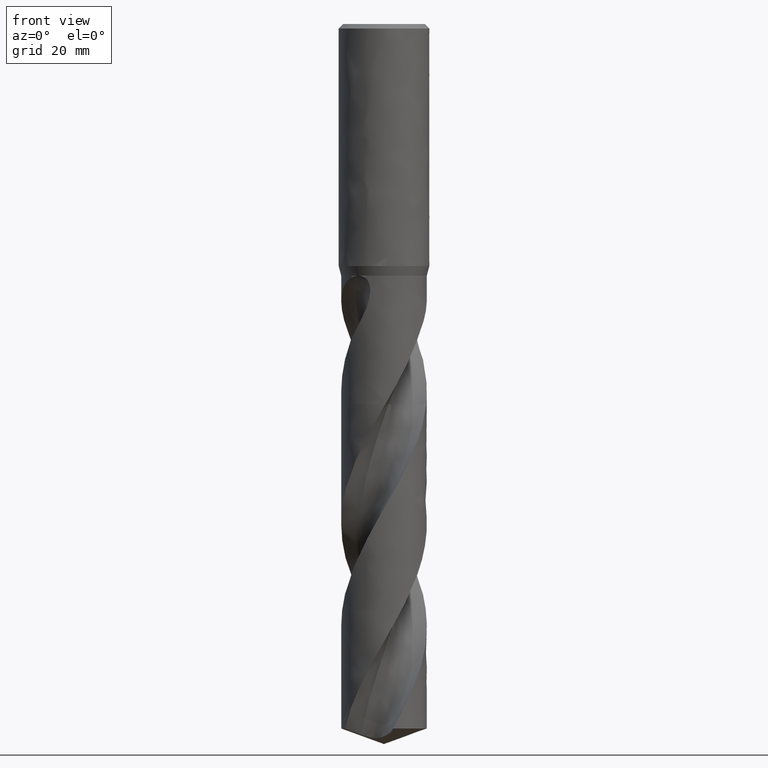
[diagram: clean part render]
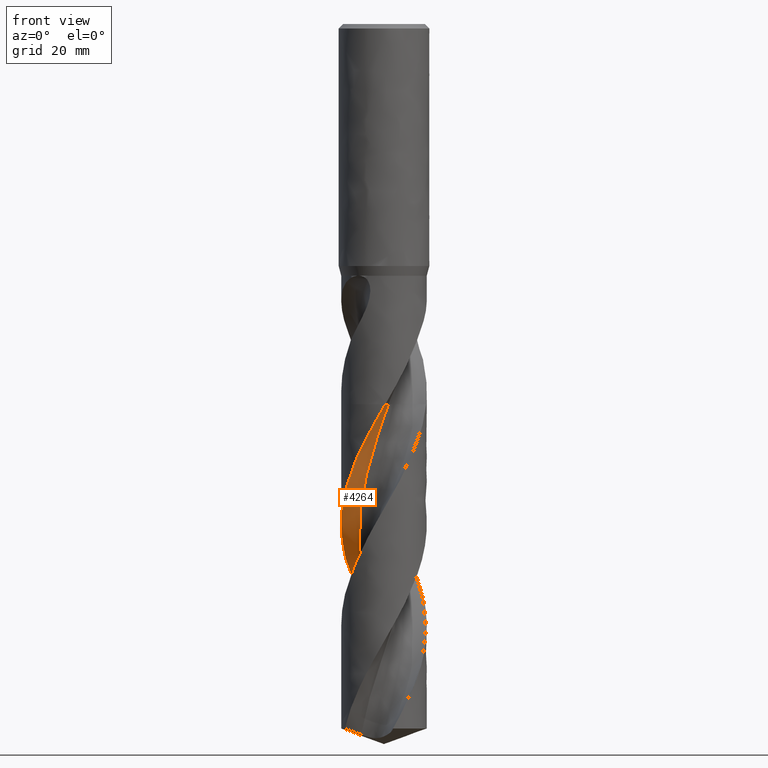
[diagram: same view with one face highlighted and labeled with its STEP entity id]
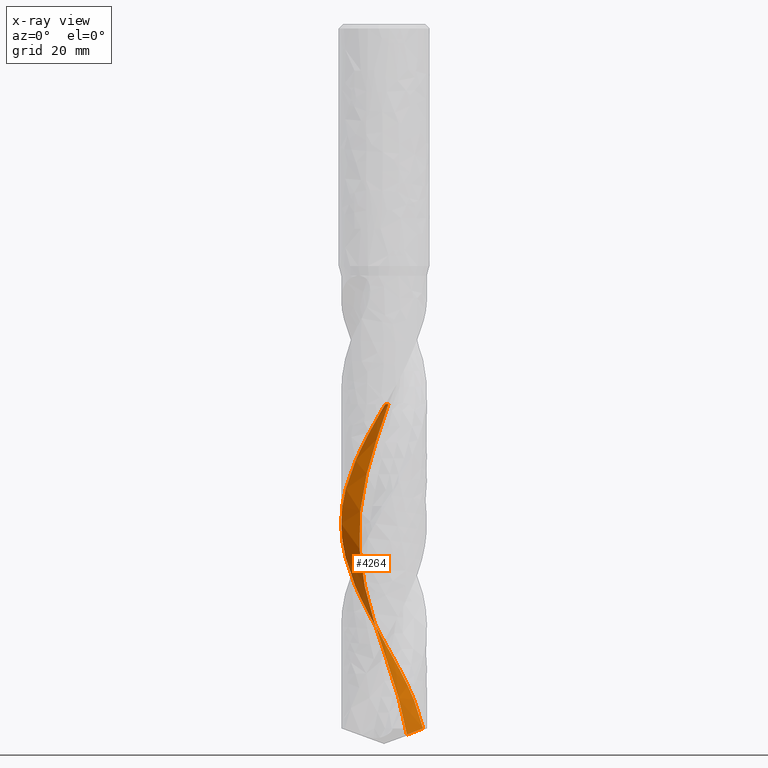
[diagram: x-ray of the same camera — body ghosted, the highlighted face saturated]
A machine part, front view. The second image highlights one B-rep face of the part: STEP entity #4264.
The next image is the same camera in x-ray: the body ghosted, the highlighted face saturated — about 0% of this face is hidden behind the body in this view.
In plain terms, the highlighted face is a freeform B-spline surface patch.
Its self-contained STEP definition (entity closure, byte-faithful):
#2070 = VERTEX_POINT('', #2071);
#2071 = CARTESIAN_POINT('', (0.273123105242103, -8.495610853222, -75.5));
#2078 = EDGE_CURVE('', #2070, #2079, #2081, .T.);
#2079 = VERTEX_POINT('', #2080);
#2080 = CARTESIAN_POINT('', (0.872850552321032, -5.01350328899463, -75.5));
#2081 = LINE('', #2082, #2083);
#2082 = CARTESIAN_POINT('', (0.273123105242104, -8.495610853222, -75.5));
#2083 = VECTOR('', #2084, 3.53337602012994);
#2084 = DIRECTION('', (0.599727447078932, 3.48210756422737, 0.));
#2261 = VERTEX_POINT('', #2262);
#2262 = CARTESIAN_POINT('', (-8.5, 6.59853093141266E-15, -99.2621880203633));
#2268 = EDGE_CURVE('', #2070, #2261, #2269, .T.);
#2269 = B_SPLINE_CURVE_WITH_KNOTS('', 3, (#2270, #2271, #2272, #2273, #2274, #2275, #2276, #2277, #2278, #2279, #2280, #2281, #2282, #2283, #2284, #2285, #2286, #2287, #2288, #2289, #2290, #2291, #2292, #2293, #2294, #2295, #2296, #2297, #2298, #2299, #2300, #2301, #2302, #2303, #2304, #2305, #2306, #2307, #2308, #2309, #2310, #2311, #2312, #2313, #2314, #2315, #2316, #2317, #2318, #2319, #2320, #2321, #2322, #2323, #2324, #2325, #2326, #2327, #2328, #2329, #2330, #2331, #2332, #2333, #2334, #2335, #2336, #2337, #2338, #2339, #2340, #2341, #2342, #2343, #2344, #2345, #2346, #2347, #2348, #2349, #2350, #2351, #2352, #2353, #2354, #2355, #2356, #2357, #2358, #2359, #2360), .UNSPECIFIED., .F., .U., (4, 3, 3, 3, 3, 3, 3, 3, 3, 3, 3, 3, 3, 3, 3, 3, 3, 3, 3, 3, 3, 3, 3, 3, 3, 3, 3, 3, 3, 3, 4), (24.2441588219189, 24.5876649683072, 24.7846591365975, 24.8722454084868, 25.8712546038705, 26.8701420773767, 27.8689053967638, 28.8675489563647, 29.8660757818898, 30.8644883369163, 31.8627874758352, 32.8609759364819, 33.8590545798768, 34.8570251056435, 35.8548883682707, 36.8526452230695, 37.8502966440866, 38.8478426378316, 39.8452841581775, 40.8426206525252, 41.8398527985312, 42.8369797336069, 43.8340016165823, 44.8309174913149, 45.8277267862753, 46.8244285826789, 47.8210214701035, 48.817504493038, 49.8138755483867, 50.8101333954164, 51.6344700378206), .UNSPECIFIED.);
#2270 = CARTESIAN_POINT('', (0.273123105242103, -8.495610853222, -75.5));
#2271 = CARTESIAN_POINT('', (0.216114492250964, -8.49744360776722, -75.5992843302546));
#2272 = CARTESIAN_POINT('', (0.159084949910594, -8.49870253770014, -75.6985783601385));
#2273 = CARTESIAN_POINT('', (0.102055337595978, -8.49938731368727, -75.7978651849422));
#2274 = CARTESIAN_POINT('', (0.0693499517856736, -8.49978001954558, -75.8548042693808));
#2275 = CARTESIAN_POINT('', (0.036642826903847, -8.49998394218386, -75.9117439698591));
#2276 = CARTESIAN_POINT('', (0.00393634562337559, -8.49999908854013, -75.968683777274));
#2277 = CARTESIAN_POINT('', (-0.010605398362423, -8.500005822815, -75.9939999858544));
#2278 = CARTESIAN_POINT('', (-0.0251470538194013, -8.49997524004555, -76.0193162827143));
#2279 = CARTESIAN_POINT('', (-0.0396884118431119, -8.49990734243411, -76.0446326228354));
#2280 = CARTESIAN_POINT('', (-0.205547171049271, -8.49913290213989, -76.3333908497682));
#2281 = CARTESIAN_POINT('', (-0.3713860911951, -8.49350200173257, -76.6221882143764));
#2282 = CARTESIAN_POINT('', (-0.536897869018356, -8.48302662251179, -76.9109565630861));
#2283 = CARTESIAN_POINT('', (-0.702389480456334, -8.47255251963845, -77.1996897275095));
#2284 = CARTESIAN_POINT('', (-0.867587900404886, -8.45723267934583, -77.4884558944368));
#2285 = CARTESIAN_POINT('', (-1.03217206679846, -8.43709789113064, -77.7771956786741));
#2286 = CARTESIAN_POINT('', (-1.19673577663136, -8.41696560551656, -78.0658995747512));
#2287 = CARTESIAN_POINT('', (-1.36071990543449, -8.39201537279887, -78.3546385719808));
#2288 = CARTESIAN_POINT('', (-1.52380729729261, -8.36229701222803, -78.6433525910205));
#2289 = CARTESIAN_POINT('', (-1.68687513365567, -8.33258221512857, -78.9320319909181));
#2290 = CARTESIAN_POINT('', (-1.84908135010558, -8.29809412744449, -79.2207474390982));
#2291 = CARTESIAN_POINT('', (-2.01011503353498, -8.2589005050283, -79.5094374062102));
#2292 = CARTESIAN_POINT('', (-2.17112989331299, -8.21971146405786, -79.7980936275915));
#2293 = CARTESIAN_POINT('', (-2.33100694271962, -8.17580961239562, -80.0867853410572));
#2294 = CARTESIAN_POINT('', (-2.48944022423327, -8.12728044120353, -80.3754508828108));
#2295 = CARTESIAN_POINT('', (-2.64785537478679, -8.07875682364548, -80.6640833899433));
#2296 = CARTESIAN_POINT('', (-2.8048600740517, -8.02559681678221, -80.9527511789534));
#2297 = CARTESIAN_POINT('', (-2.96015285020663, -7.96790405962657, -81.2413933882806));
#2298 = CARTESIAN_POINT('', (-3.11542798565569, -7.9102178561625, -81.5300028088816));
#2299 = CARTESIAN_POINT('', (-3.2690247179435, -7.84798763364139, -81.8186475645104));
#2300 = CARTESIAN_POINT('', (-3.42064869110348, -7.78133423855138, -82.1072666198492));
#2301 = CARTESIAN_POINT('', (-3.57225585419248, -7.71468823311275, -82.3958536769049));
#2302 = CARTESIAN_POINT('', (-3.72192244319012, -7.6436060887603, -82.6844762687654));
#2303 = CARTESIAN_POINT('', (-3.86936216696276, -7.56822544728136, -82.9730732164016));
#2304 = CARTESIAN_POINT('', (-4.01678566992551, -7.49285309892061, -83.2616384135971));
#2305 = CARTESIAN_POINT('', (-4.1620143107232, -7.41316707361552, -83.5502387271682));
#2306 = CARTESIAN_POINT('', (-4.30476983133559, -7.32932170799065, -83.8388134473944));
#2307 = CARTESIAN_POINT('', (-4.44750988784762, -7.24548542497878, -84.1273569075445));
#2308 = CARTESIAN_POINT('', (-4.58780726923251, -7.15747316199552, -84.4159358913781));
#2309 = CARTESIAN_POINT('', (-4.72539429393629, -7.0654546043998, -84.7044891276601));
#2310 = CARTESIAN_POINT('', (-4.86296653061192, -6.97344593707551, -84.9930113498739));
#2311 = CARTESIAN_POINT('', (-4.99785810846836, -6.87741233866402, -85.2815686720025));
#2312 = CARTESIAN_POINT('', (-5.12981090613304, -6.7775393814657, -85.5701005411033));
#2313 = CARTESIAN_POINT('', (-5.2617496329213, -6.67767707428817, -85.8586016424118));
#2314 = CARTESIAN_POINT('', (-5.39077794030814, -6.57395527296669, -86.1471382400447));
#2315 = CARTESIAN_POINT('', (-5.51665025569285, -6.46657327773868, -86.4356490037921));
#2316 = CARTESIAN_POINT('', (-5.64250927004721, -6.35920262965379, -86.7241292803714));
#2317 = CARTESIAN_POINT('', (-5.76523928345365, -6.24815007234425, -87.0126446927155));
#2318 = CARTESIAN_POINT('', (-5.88460594175765, -6.13362966849406, -87.3011347194531));
#2319 = CARTESIAN_POINT('', (-6.00395998593519, -6.01912136664016, -87.5895942598746));
#2320 = CARTESIAN_POINT('', (-6.11997659779415, -5.90112179715424, -87.878089158008));
#2321 = CARTESIAN_POINT('', (-6.23243526034521, -5.77985732744379, -88.1665582605446));
#2322 = CARTESIAN_POINT('', (-6.34488214505465, -5.65860555781074, -88.4549971515943));
#2323 = CARTESIAN_POINT('', (-6.45379519076413, -5.53406435227239, -88.7434712387315));
#2324 = CARTESIAN_POINT('', (-6.55896698920659, -5.40647316043447, -89.0319199654886));
#2325 = CARTESIAN_POINT('', (-6.66412771354306, -5.2788954033614, -89.3203383199232));
#2326 = CARTESIAN_POINT('', (-6.7655703167779, -5.14824122143428, -89.6087918317009));
#2327 = CARTESIAN_POINT('', (-6.86310212096473, -5.01476113859965, -89.8972196803495));
#2328 = CARTESIAN_POINT('', (-6.96062372068988, -4.88129502138785, -90.1856173516528));
#2329 = CARTESIAN_POINT('', (-7.0542555727208, -4.74497589985589, -90.4740502812532));
#2330 = CARTESIAN_POINT('', (-7.14381996984732, -4.60606515785551, -90.7624578196325));
#2331 = CARTESIAN_POINT('', (-7.233374917666, -4.46716907134779, -91.0508349301666));
#2332 = CARTESIAN_POINT('', (-7.3188823427876, -4.32565232035809, -91.3392469931939));
#2333 = CARTESIAN_POINT('', (-7.40017996951928, -4.18178627128713, -91.6276335830667));
#2334 = CARTESIAN_POINT('', (-7.48146903115645, -4.03793537919378, -91.9159897900305));
#2335 = CARTESIAN_POINT('', (-7.55856608508484, -3.89170580365146, -92.2043813102326));
#2336 = CARTESIAN_POINT('', (-7.63132543118528, -3.74337710675063, -92.4927473415594));
#2337 = CARTESIAN_POINT('', (-7.7040770411562, -3.59506418088228, -92.7810827123994));
#2338 = CARTESIAN_POINT('', (-7.77250728493825, -3.44462110075521, -93.0694529089975));
#2339 = CARTESIAN_POINT('', (-7.83648658090541, -3.29233626279111, -93.3577978146648));
#2340 = CARTESIAN_POINT('', (-7.90045903687839, -3.14006770552207, -93.6461118935238));
#2341 = CARTESIAN_POINT('', (-7.95999485272256, -2.98592607759788, -93.9344613083441));
#2342 = CARTESIAN_POINT('', (-8.01498213288137, -2.83020518860249, -94.2227850855037));
#2343 = CARTESIAN_POINT('', (-8.06996348306612, -2.67450109296055, -94.511077769063));
#2344 = CARTESIAN_POINT('', (-8.12040875219768, -2.51718549943128, -94.7994053067354));
#2345 = CARTESIAN_POINT('', (-8.16622293362717, -2.35855951765091, -95.0877076555739));
#2346 = CARTESIAN_POINT('', (-8.21203210896983, -2.19995086883191, -95.3759785017957));
#2347 = CARTESIAN_POINT('', (-8.25322082367302, -2.03999894659519, -95.6642845930491));
#2348 = CARTESIAN_POINT('', (-8.28971220698595, -1.8790081227467, -95.9525650092895));
#2349 = CARTESIAN_POINT('', (-8.32619956748548, -1.7180350465412, -96.2408136454707));
#2350 = CARTESIAN_POINT('', (-8.35799815459284, -1.55598999525265, -96.5290972076766));
#2351 = CARTESIAN_POINT('', (-8.38504875007769, -1.39318249300677, -96.8173556290558));
#2352 = CARTESIAN_POINT('', (-8.41209630608289, -1.23039328426169, -97.1055816609222));
#2353 = CARTESIAN_POINT('', (-8.43440265482111, -1.06680752386528, -97.3938427478288));
#2354 = CARTESIAN_POINT('', (-8.45192682337311, -0.902736380316102, -97.6820782515167));
#2355 = CARTESIAN_POINT('', (-8.46944900081782, -0.738683878635606, -97.9702810057015));
#2356 = CARTESIAN_POINT('', (-8.48219367807006, -0.574112336936368, -98.258518763255));
#2357 = CARTESIAN_POINT('', (-8.49013807710422, -0.409335353597979, -98.5467313754282));
#2358 = CARTESIAN_POINT('', (-8.49671153521575, -0.272993436095747, -98.7852080084863));
#2359 = CARTESIAN_POINT('', (-8.5, -0.136489072500538, -99.0237049676689));
#2360 = CARTESIAN_POINT('', (-8.5, 5.55357687757113E-15, -99.2621880203633));
#2606 = VERTEX_POINT('', #2607);
#2607 = CARTESIAN_POINT('', (7.78303334169317, 3.41678094148462, -139.906253008737));
#2614 = EDGE_CURVE('', #2606, #2261, #2615, .T.);
#2615 = B_SPLINE_CURVE_WITH_KNOTS('', 3, (#2616, #2617, #2618, #2619, #2620, #2621, #2622, #2623, #2624, #2625, #2626, #2627, #2628, #2629, #2630, #2631, #2632, #2633, #2634, #2635, #2636, #2637, #2638, #2639, #2640, #2641, #2642, #2643, #2644, #2645, #2646, #2647, #2648, #2649, #2650, #2651, #2652, #2653, #2654, #2655, #2656, #2657, #2658, #2659, #2660, #2661, #2662, #2663, #2664, #2665, #2666, #2667, #2668, #2669, #2670, #2671, #2672, #2673, #2674, #2675, #2676, #2677, #2678, #2679, #2680, #2681, #2682, #2683, #2684, #2685, #2686, #2687, #2688, #2689, #2690, #2691, #2692, #2693, #2694, #2695, #2696, #2697, #2698, #2699, #2700, #2701, #2702, #2703, #2704, #2705, #2706, #2707, #2708, #2709, #2710, #2711, #2712, #2713, #2714, #2715, #2716, #2717, #2718, #2719, #2720, #2721, #2722, #2723, #2724, #2725, #2726, #2727, #2728, #2729, #2730, #2731, #2732, #2733, #2734, #2735, #2736, #2737, #2738, #2739, #2740, #2741, #2742, #2743, #2744, #2745, #2746, #2747, #2748, #2749, #2750, #2751, #2752, #2753, #2754), .UNSPECIFIED., .F., .U., (4, 3, 3, 3, 3, 3, 3, 3, 3, 3, 3, 3, 3, 3, 3, 3, 3, 3, 3, 3, 3, 3, 3, 3, 3, 3, 3, 3, 3, 3, 3, 3, 3, 3, 3, 3, 3, 3, 3, 3, 3, 3, 3, 3, 3, 3, 4), (0., 1.49764488866325, 2.99493055618322, 3.99279279966598, 4.99055169185537, 5.98820695926208, 6.98575979598458, 7.98320958355846, 8.98055704541274, 10.4761024013327, 11.9713008947787, 12.9682341699176, 13.9650624525783, 14.9617840817369, 15.9583984792186, 16.954903451076, 17.9512980070555, 18.9475796306885, 19.6120112228616, 19.8090068483731, 19.9403619786778, 21.4398449390983, 22.9389148706815, 23.9375478948172, 24.9360669118708, 25.9344733728537, 26.932769603456, 27.9309566160253, 28.9290361715122, 29.9270090808587, 30.9248764136484, 31.9226389360135, 32.9202969770207, 33.9178512470021, 34.9153014923473, 35.9126481993724, 36.9098907407616, 37.9070291843337, 38.9040626992015, 39.9009907749788, 40.8978124781968, 41.8945266249253, 42.8911321695102, 43.8876272748787, 44.8840106261979, 45.8802798740275, 46.7911153797545), .UNSPECIFIED.);
#2616 = CARTESIAN_POINT('', (7.78303334169317, 3.41678094148463, -139.906253008737));
#2617 = CARTESIAN_POINT('', (7.68383492364754, 3.64274350926835, -139.472298897121));
#2618 = CARTESIAN_POINT('', (7.57475679724769, 3.86445051030869, -139.038254322803));
#2619 = CARTESIAN_POINT('', (7.45625711607402, 4.08095942383597, -138.604321960451));
#2620 = CARTESIAN_POINT('', (7.33778585792058, 4.29741640610769, -138.170493679969));
#2621 = CARTESIAN_POINT('', (7.20984423908365, 4.50877523326975, -137.736574912808));
#2622 = CARTESIAN_POINT('', (7.07297032928552, 4.71413732522153, -137.302768521506));
#2623 = CARTESIAN_POINT('', (6.98175105852896, 4.85100037163053, -137.013659349988));
#2624 = CARTESIAN_POINT('', (6.88654355245077, 4.98523577621884, -136.724525217343));
#2625 = CARTESIAN_POINT('', (6.78752691696637, 5.1165885462344, -136.435425377164));
#2626 = CARTESIAN_POINT('', (6.68852053690291, 5.24792771168806, -136.146355479837));
#2627 = CARTESIAN_POINT('', (6.58568488300068, 5.37641262254916, -135.857260860407));
#2628 = CARTESIAN_POINT('', (6.47921317964737, 5.50179939407863, -135.56820104112));
#2629 = CARTESIAN_POINT('', (6.3727525341831, 5.62717314324663, -135.279171242874));
#2630 = CARTESIAN_POINT('', (6.26263526569623, 5.74947453075587, -134.990116186305));
#2631 = CARTESIAN_POINT('', (6.14906811050915, 5.86847180893966, -134.701095738352));
#2632 = CARTESIAN_POINT('', (6.03551261542331, 5.98745686950376, -134.41210496454));
#2633 = CARTESIAN_POINT('', (5.91848412691562, 6.10316341795634, -134.123089587826));
#2634 = CARTESIAN_POINT('', (5.79820326642092, 6.21537117807664, -133.834108800199));
#2635 = CARTESIAN_POINT('', (5.67793483117311, 6.32756734691704, -133.545157864849));
#2636 = CARTESIAN_POINT('', (5.55439055980109, 6.43628801834909, -133.256181488328));
#2637 = CARTESIAN_POINT('', (5.42780202341649, 6.54132747954082, -132.967240016906));
#2638 = CARTESIAN_POINT('', (5.30122647341301, 6.64635616501373, -132.678328187221));
#2639 = CARTESIAN_POINT('', (5.17158105260763, 6.74772609629115, -132.389391792671));
#2640 = CARTESIAN_POINT('', (5.03911082769909, 6.84524375505839, -132.100489757884));
#2641 = CARTESIAN_POINT('', (4.84046869219768, 6.99147371730082, -131.667274541555));
#2642 = CARTESIAN_POINT('', (4.6353949072298, 7.12909355827609, -131.233969157928));
#2643 = CARTESIAN_POINT('', (4.42475615699168, 7.25751561838928, -130.800775881333));
#2644 = CARTESIAN_POINT('', (4.21416626028896, 7.38590789351915, -130.36768307544));
#2645 = CARTESIAN_POINT('', (3.99791912185185, 7.50516449715005, -129.934499816654));
#2646 = CARTESIAN_POINT('', (3.77692862248946, 7.61477578006208, -129.501428661678));
#2647 = CARTESIAN_POINT('', (3.62958177638866, 7.6878598125465, -129.212675665476));
#2648 = CARTESIAN_POINT('', (3.48008976908318, 7.75667667124854, -128.923897828599));
#2649 = CARTESIAN_POINT('', (3.32873548544074, 7.8210945568998, -128.635154207878));
#2650 = CARTESIAN_POINT('', (3.17739714174305, 7.88550565835233, -128.346440996323));
#2651 = CARTESIAN_POINT('', (3.02416491494493, 7.94553235627809, -128.057702914086));
#2652 = CARTESIAN_POINT('', (2.86932772015067, 8.00105983194571, -127.768999700829));
#2653 = CARTESIAN_POINT('', (2.71450709182966, 8.05658136657028, -127.480327376754));
#2654 = CARTESIAN_POINT('', (2.55805058448758, 8.10761584336222, -127.191629925439));
#2655 = CARTESIAN_POINT('', (2.40025358223125, 8.1540654118658, -126.90296693489));
#2656 = CARTESIAN_POINT('', (2.24247355646732, 8.20050998312143, -126.614334999969));
#2657 = CARTESIAN_POINT('', (2.0833200809807, 8.24238041079563, -126.325678347831));
#2658 = CARTESIAN_POINT('', (1.92309399695492, 8.27959597316657, -126.037056393537));
#2659 = CARTESIAN_POINT('', (1.76288550532931, 8.31680744936721, -125.74846612917));
#2660 = CARTESIAN_POINT('', (1.60157238188155, 8.34937259796571, -125.459850507587));
#2661 = CARTESIAN_POINT('', (1.43945848256584, 8.37722861553685, -125.171269632664));
#2662 = CARTESIAN_POINT('', (1.27736254597887, 8.40508154657383, -124.882720733408));
#2663 = CARTESIAN_POINT('', (1.11443220623389, 8.42823216482109, -124.594147186325));
#2664 = CARTESIAN_POINT('', (0.950976100458751, 8.4466350966735, -124.305608143436));
#2665 = CARTESIAN_POINT('', (0.787538520960657, 8.46503594271936, -124.017101803848));
#2666 = CARTESIAN_POINT('', (0.623542164579376, 8.47869394997542, -123.728570026872));
#2667 = CARTESIAN_POINT('', (0.459295607180904, 8.48758196103134, -123.440073210335));
#2668 = CARTESIAN_POINT('', (0.349757702383197, 8.49350947710416, -123.2476713888));
#2669 = CARTESIAN_POINT('', (0.240096010166174, 8.49731659337362, -123.055262996776));
#2670 = CARTESIAN_POINT('', (0.13040303208192, 8.49899964991316, -122.86286557776));
#2671 = CARTESIAN_POINT('', (0.097880441214049, 8.49949865504729, -122.805822158464));
#2672 = CARTESIAN_POINT('', (0.0653545295756842, 8.49981098583043, -122.748778693923));
#2673 = CARTESIAN_POINT('', (0.0328277160425935, 8.49993660806123, -122.691735638007));
#2674 = CARTESIAN_POINT('', (0.0111390931661173, 8.50002037197454, -122.653699777954));
#2675 = CARTESIAN_POINT('', (-0.0105500280806034, 8.5000211242177, -122.615663928679));
#2676 = CARTESIAN_POINT('', (-0.0322389301338692, 8.49993886162624, -122.577628224542));
#2677 = CARTESIAN_POINT('', (-0.2798283389652, 8.49899979397138, -122.143432086877));
#2678 = CARTESIAN_POINT('', (-0.527453143966306, 8.48723239639503, -121.709144881521));
#2679 = CARTESIAN_POINT('', (-0.774054129441803, 8.46468193169097, -121.274970822322));
#2680 = CARTESIAN_POINT('', (-1.0205871892916, 8.4421376784561, -120.840916355284));
#2681 = CARTESIAN_POINT('', (-1.2662097023458, 8.40880602173532, -120.406770353337));
#2682 = CARTESIAN_POINT('', (-1.50987203867461, 8.36482435122396, -119.972737691177));
#2683 = CARTESIAN_POINT('', (-1.67219218843507, 8.33552515196451, -119.683598845246));
#2684 = CARTESIAN_POINT('', (-1.83368436364188, 8.30149464647715, -119.394434763267));
#2685 = CARTESIAN_POINT('', (-1.99404066935594, 8.26279624636567, -119.105305319301));
#2686 = CARTESIAN_POINT('', (-2.15437866829058, 8.22410226418507, -118.81620888326));
#2687 = CARTESIAN_POINT('', (-2.31361512200037, 8.18073324004036, -118.527087381327));
#2688 = CARTESIAN_POINT('', (-2.47144675137831, 8.13277018949274, -118.238000940897));
#2689 = CARTESIAN_POINT('', (-2.62926058949965, 8.08481254548462, -117.94894708716));
#2690 = CARTESIAN_POINT('', (-2.78570204788974, 8.03225215511987, -117.659867750478));
#2691 = CARTESIAN_POINT('', (-2.94047351516401, 7.97518749037407, -117.370823306773));
#2692 = CARTESIAN_POINT('', (-3.09522789469056, 7.91812912592776, -117.081810775401));
#2693 = CARTESIAN_POINT('', (-3.24834528917563, 7.85655542819011, -116.792773279208));
#2694 = CARTESIAN_POINT('', (-3.39953344497941, 7.79058228609817, -116.503770676637));
#2695 = CARTESIAN_POINT('', (-3.55070506012873, 7.72461636176043, -116.214799692231));
#2696 = CARTESIAN_POINT('', (-3.69997869347241, 7.65423853288943, -115.925803074453));
#2697 = CARTESIAN_POINT('', (-3.84707079195352, 7.57958088034545, -115.636841589631));
#2698 = CARTESIAN_POINT('', (-3.9941470556386, 7.50493126486608, -115.347911212165));
#2699 = CARTESIAN_POINT('', (-4.13907294649132, 7.42598712531795, -115.05895589536));
#2700 = CARTESIAN_POINT('', (-4.28157133892606, 7.34289771613952, -114.770035294348));
#2701 = CARTESIAN_POINT('', (-4.42405450521629, 7.25981718517601, -114.48114556489));
#2702 = CARTESIAN_POINT('', (-4.56414008271814, 7.17257517966173, -114.192230220688));
#2703 = CARTESIAN_POINT('', (-4.70156192340903, 7.08133571300997, -113.903350140873));
#2704 = CARTESIAN_POINT('', (-4.83896922610531, 6.99010589867307, -113.614500621972));
#2705 = CARTESIAN_POINT('', (-4.97374178801934, 6.89486053525878, -113.325626121447));
#2706 = CARTESIAN_POINT('', (-5.10562152818837, 6.79578022090912, -113.036786172914));
#2707 = CARTESIAN_POINT('', (-5.2374874164443, 6.69671031340362, -112.747976562519));
#2708 = CARTESIAN_POINT('', (-5.36648885319446, 6.5937854474973, -112.459141557693));
#2709 = CARTESIAN_POINT('', (-5.49238016040138, 6.48719971741501, -112.170341780983));
#2710 = CARTESIAN_POINT('', (-5.61825828481738, 6.38062514852745, -111.881572246131));
#2711 = CARTESIAN_POINT('', (-5.74105282121156, 6.27036852148574, -111.59277755842));
#2712 = CARTESIAN_POINT('', (-5.8605286862891, 6.15663897895456, -111.30401746073));
#2713 = CARTESIAN_POINT('', (-5.97999212412951, 6.04292126595894, -111.015287398313));
#2714 = CARTESIAN_POINT('', (-6.09616296352582, 5.92570722256763, -110.726532151925));
#2715 = CARTESIAN_POINT('', (-6.20881931074493, 5.80521858042579, -110.437812019756));
#2716 = CARTESIAN_POINT('', (-6.32146391019664, 5.68474250280055, -110.14912199523));
#2717 = CARTESIAN_POINT('', (-6.43061781619613, 5.56096783148595, -109.860406591029));
#2718 = CARTESIAN_POINT('', (-6.53607230870669, 5.43412907238664, -109.571725970748));
#2719 = CARTESIAN_POINT('', (-6.64151585472539, 5.30730347953005, -109.283075316378));
#2720 = CARTESIAN_POINT('', (-6.74328308331491, 5.17738757054647, -108.99439960209));
#2721 = CARTESIAN_POINT('', (-6.84117906612153, 5.04462773505247, -108.70575886467));
#2722 = CARTESIAN_POINT('', (-6.93906482440219, 4.91188176536119, -108.417148273684));
#2723 = CARTESIAN_POINT('', (-7.0331001759942, 4.77626532805451, -108.12851212033));
#2724 = CARTESIAN_POINT('', (-7.12310544866666, 4.6380350114219, -107.839910980644));
#2725 = CARTESIAN_POINT('', (-7.21310132607967, 4.49981912405161, -107.551339966778));
#2726 = CARTESIAN_POINT('', (-7.29908684809979, 4.358960855551, -107.262743943527));
#2727 = CARTESIAN_POINT('', (-7.38089684864564, 4.21572789796175, -106.974182748653));
#2728 = CARTESIAN_POINT('', (-7.46269824033941, 4.07251001275163, -106.685651919022));
#2729 = CARTESIAN_POINT('', (-7.54034182981004, 3.92688851834888, -106.39709546095));
#2730 = CARTESIAN_POINT('', (-7.61367914138684, 3.7791387817876, -106.108574189549));
#2731 = CARTESIAN_POINT('', (-7.68700869733725, 3.63140467017533, -105.820083430081));
#2732 = CARTESIAN_POINT('', (-7.75604812362643, 3.48151198041251, -105.531567650998));
#2733 = CARTESIAN_POINT('', (-7.82066438343154, 3.32974602661006, -105.243086552755));
#2734 = CARTESIAN_POINT('', (-7.88527374866011, 3.17799626628566, -104.954636235542));
#2735 = CARTESIAN_POINT('', (-7.94547438032527, 3.02434204914946, -104.666160386383));
#2736 = CARTESIAN_POINT('', (-8.00115074048929, 2.86907421095511, -104.37771977434));
#2737 = CARTESIAN_POINT('', (-8.05682109320602, 2.71382312607138, -104.089310284874));
#2738 = CARTESIAN_POINT('', (-8.10797963941399, 2.55692661842123, -103.800875692454));
#2739 = CARTESIAN_POINT('', (-8.15452740825889, 2.39868354477087, -103.512475699389));
#2740 = CARTESIAN_POINT('', (-8.20107010525096, 2.24045771331282, -103.224107130435));
#2741 = CARTESIAN_POINT('', (-8.24301290267621, 2.08085213317688, -102.935713248778));
#2742 = CARTESIAN_POINT('', (-8.28027467420713, 1.92016960700978, -102.647354524077));
#2743 = CARTESIAN_POINT('', (-8.3175323165609, 1.75950488693694, -102.359027753956));
#2744 = CARTESIAN_POINT('', (-8.35011763167194, 1.59773034485755, -102.070675701133));
#2745 = CARTESIAN_POINT('', (-8.37796714460867, 1.43515383281995, -101.782358353544));
#2746 = CARTESIAN_POINT('', (-8.40581353430292, 1.27259555326885, -101.494073339912));
#2747 = CARTESIAN_POINT('', (-8.42893109990213, 1.1092009856033, -101.205763164341));
#2748 = CARTESIAN_POINT('', (-8.44727436929597, 0.945280767727511, -100.917488032924));
#2749 = CARTESIAN_POINT('', (-8.46561553806153, 0.781379321611434, -100.6292459141));
#2750 = CARTESIAN_POINT('', (-8.47918727637823, 0.616918673624112, -100.340978327292));
#2751 = CARTESIAN_POINT('', (-8.48796235450366, 0.452211309598566, -100.052745636894));
#2752 = CARTESIAN_POINT('', (-8.49598493749474, 0.301628206149395, -99.7892299568731));
#2753 = CARTESIAN_POINT('', (-8.5, 0.150811072785338, -99.5256954525631));
#2754 = CARTESIAN_POINT('', (-8.5, 5.55357687757113E-15, -99.2621880203633));
#3797 = EDGE_CURVE('', #3798, #2079, #3800, .T.);
#3798 = VERTEX_POINT('', #3799);
#3799 = CARTESIAN_POINT('', (4.53570684960779, 2.30879701014691, -141.147567413682));
#3800 = B_SPLINE_CURVE_WITH_KNOTS('', 3, (#3801, #3802, #3803, #3804, #3805, #3806, #3807, #3808, #3809, #3810, #3811, #3812, #3813, #3814, #3815, #3816, #3817, #3818, #3819, #3820, #3821, #3822, #3823, #3824, #3825, #3826, #3827, #3828, #3829, #3830, #3831, #3832, #3833, #3834, #3835, #3836, #3837, #3838, #3839, #3840, #3841, #3842, #3843, #3844, #3845), .UNSPECIFIED., .F., .U., (4, 1, 1, 1, 1, 1, 1, 1, 1, 1, 1, 1, 1, 1, 1, 1, 1, 1, 1, 1, 1, 1, 1, 1, 1, 1, 1, 1, 1, 1, 1, 1, 1, 1, 1, 1, 1, 1, 1, 1, 1, 1, 4), (1.90243258631817, 3.15491525423729, 4.73237288135593, 6.30983050847458, 7.88728813559322, 9.46474576271186, 11.0422033898305, 12.6196610169492, 14.1971186440678, 15.7745762711864, 17.3520338983051, 18.9294915254237, 20.5069491525424, 22.084406779661, 23.6618644067797, 25.2393220338983, 26.8167796610169, 28.3942372881356, 29.9716949152542, 31.5491525423729, 33.1266101694915, 34.7040677966102, 36.2815254237288, 37.8589830508475, 39.4364406779661, 41.0138983050847, 42.5913559322034, 44.168813559322, 45.7462711864407, 47.3237288135593, 48.901186440678, 50.4786440677966, 52.0561016949152, 53.6335593220339, 55.2110169491525, 56.7884745762712, 58.3659322033898, 59.9433898305085, 61.5208474576271, 63.0983050847458, 64.6757627118644, 66.2532203389831, 67.55), .UNSPECIFIED.);
#3801 = CARTESIAN_POINT('', (4.53570684960778, 2.30879701014692, -141.147567413682));
#3802 = CARTESIAN_POINT('', (4.46769455850518, 2.43448795774081, -140.730073191042));
#3803 = CARTESIAN_POINT('', (4.30237233456855, 2.71178721590451, -139.786759759363));
#3804 = CARTESIAN_POINT('', (4.00596020398452, 3.11678888446556, -138.317627118644));
#3805 = CARTESIAN_POINT('', (3.64480641942108, 3.514953969856, -136.740169491525));
#3806 = CARTESIAN_POINT('', (3.24488716198237, 3.87227467584015, -135.162711864407));
#3807 = CARTESIAN_POINT('', (2.81072271988332, 4.18506552300946, -133.585254237288));
#3808 = CARTESIAN_POINT('', (2.34717185167911, 4.45012879469237, -132.00779661017));
#3809 = CARTESIAN_POINT('', (1.85938322845106, 4.66478712323646, -130.430338983051));
#3810 = CARTESIAN_POINT('', (1.35274002243834, 4.82690804329075, -128.852881355932));
#3811 = CARTESIAN_POINT('', (0.832803573453643, 4.93492366122554, -127.275423728814));
#3812 = CARTESIAN_POINT('', (0.30525524990833, 4.98784438623364, -125.697966101695));
#3813 = CARTESIAN_POINT('', (-0.224162538920032, 4.98526686384074, -124.120508474576));
#3814 = CARTESIAN_POINT('', (-0.749705708322296, 4.92737600175594, -122.543050847458));
#3815 = CARTESIAN_POINT('', (-1.26568763918169, 4.81494111468747, -120.965593220339));
#3816 = CARTESIAN_POINT('', (-1.76653753302831, 4.6493062470862, -119.38813559322));
#3817 = CARTESIAN_POINT('', (-2.2468574204104, 4.43237479199793, -117.810677966102));
#3818 = CARTESIAN_POINT('', (-2.70147727947187, 4.16658857459936, -116.233220338983));
#3819 = CARTESIAN_POINT('', (-3.12550774066004, 3.8549016196097, -114.655762711864));
#3820 = CARTESIAN_POINT('', (-3.51438987782229, 3.50074886968906, -113.078305084746));
#3821 = CARTESIAN_POINT('', (-3.86394161427363, 3.10801016746339, -111.500847457627));
#3822 = CARTESIAN_POINT('', (-4.17040030476967, 2.68096985642617, -109.923389830508));
#3823 = CARTESIAN_POINT('', (-4.43046109034622, 2.22427239538146, -108.34593220339));
#3824 = CARTESIAN_POINT('', (-4.64131066240843, 1.74287441699916, -106.768474576271));
#3825 = CARTESIAN_POINT('', (-4.80065611493931, 1.24199369317963, -105.191016949153));
#3826 = CARTESIAN_POINT('', (-4.90674860891064, 0.727055498024628, -103.613559322034));
#3827 = CARTESIAN_POINT('', (-4.95840162055451, 0.203636883064418, -102.036101694915));
#3828 = CARTESIAN_POINT('', (-4.95500359471716, -0.322590601188567, -100.458644067797));
#3829 = CARTESIAN_POINT('', (-4.89652487567367, -0.845919188464454, -98.881186440678));
#3830 = CARTESIAN_POINT('', (-4.78351884013571, -1.36066362573158, -97.3037288135593));
#3831 = CARTESIAN_POINT('', (-4.61711721030527, -1.86121978367811, -95.7262711864407));
#3832 = CARTESIAN_POINT('', (-4.39901957835177, -2.34212258391505, -94.148813559322));
#3833 = CARTESIAN_POINT('', (-4.13147722698303, -2.79810268284054, -92.5713559322034));
#3834 = CARTESIAN_POINT('', (-3.81727138419375, -3.22414136065348, -90.9938983050847));
#3835 = CARTESIAN_POINT('', (-3.45968610046548, -3.61552308131949, -89.4164406779661));
#3836 = CARTESIAN_POINT('', (-3.06247599411053, -3.96788519677605, -87.8389830508475));
#3837 = CARTESIAN_POINT('', (-2.62982913407136, -4.27726433531227, -86.2615254237288));
#3838 = CARTESIAN_POINT('', (-2.16632547043543, -4.54013888181021, -84.6840677966102));
#3839 = CARTESIAN_POINT('', (-1.67689091522493, -4.75346758874833, -83.1066101694915));
#3840 = CARTESIAN_POINT('', (-1.16674853002574, -4.91472215906032, -81.5291525423729));
#3841 = CARTESIAN_POINT('', (-0.641363414935185, -5.02192002137347, -79.9516949152542));
#3842 = CARTESIAN_POINT('', (-0.106396213709954, -5.07363244073825, -78.3742372881356));
#3843 = CARTESIAN_POINT('', (0.400432664223965, -5.06933053580082, -76.8903389830508));
#3844 = CARTESIAN_POINT('', (0.726494927196873, -5.03520302541645, -75.9322598870056));
#3845 = CARTESIAN_POINT('', (0.872850552321032, -5.01350328899463, -75.5));
#4264 = ADVANCED_FACE('', (#4265), #4305, .T.);
#4265 = FACE_OUTER_BOUND('', #4266, .T.);
#4266 = EDGE_LOOP('', (#4267, #4268, #4269, #4270, #4304));
#4267 = ORIENTED_EDGE('', *, *, #2078, .F.);
#4268 = ORIENTED_EDGE('', *, *, #2268, .T.);
#4269 = ORIENTED_EDGE('', *, *, #2614, .F.);
#4270 = ORIENTED_EDGE('', *, *, #4271, .F.);
#4271 = EDGE_CURVE('', #3798, #2606, #4272, .T.);
#4272 = B_SPLINE_CURVE_WITH_KNOTS('', 3, (#4273, #4274, #4275, #4276, #4277, #4278, #4279, #4280, #4281, #4282, #4283, #4284, #4285, #4286, #4287, #4288, #4289, #4290, #4291, #4292, #4293, #4294, #4295, #4296, #4297, #4298, #4299, #4300, #4301, #4302, #4303), .UNSPECIFIED., .F., .U., (4, 3, 3, 3, 3, 3, 3, 3, 3, 3, 4), (0., 0.295776264781721, 0.591516409047684, 0.88722895626228, 1.18292062769067, 1.47859675553453, 1.92216099166672, 2.36570183720965, 2.80923149055827, 3.25275886854403, 3.65283511382563), .UNSPECIFIED.);
#4273 = CARTESIAN_POINT('', (4.53570684960779, 2.30879701014691, -141.147567413682));
#4274 = CARTESIAN_POINT('', (4.62594129921141, 2.33100842190221, -141.114631154633));
#4275 = CARTESIAN_POINT('', (4.71598791720835, 2.35385669549908, -141.081603036149));
#4276 = CARTESIAN_POINT('', (4.80583924117977, 2.37733816765309, -141.04850077167));
#4277 = CARTESIAN_POINT('', (4.89567959241082, 2.40081677222445, -141.015402549675));
#4278 = CARTESIAN_POINT('', (4.98532879253926, 2.42492949159316, -140.982228639461));
#4279 = CARTESIAN_POINT('', (5.07477861397122, 2.44967232000068, -140.948993902072));
#4280 = CARTESIAN_POINT('', (5.16422008837501, 2.47441283952616, -140.915762265989));
#4281 = CARTESIAN_POINT('', (5.25346626447364, 2.49978446965681, -140.882468272858));
#4282 = CARTESIAN_POINT('', (5.34250833172987, 2.52578289826129, -140.849124543979));
#4283 = CARTESIAN_POINT('', (5.43154411307373, 2.55177949151031, -140.815783168997));
#4284 = CARTESIAN_POINT('', (5.52037981026249, 2.57840396221638, -140.782390539179));
#4285 = CARTESIAN_POINT('', (5.60900617245811, 2.60565171900353, -140.748957498937));
#4286 = CARTESIAN_POINT('', (5.69762787584359, 2.63289804346149, -140.715526216165));
#4287 = CARTESIAN_POINT('', (5.78604421775119, 2.66076880405081, -140.682053013614));
#4288 = CARTESIAN_POINT('', (5.87424561948491, 2.68925915114143, -140.648547312158));
#4289 = CARTESIAN_POINT('', (6.00656265052526, 2.73199949388248, -140.598283089));
#4290 = CARTESIAN_POINT('', (6.13840697700414, 2.77613786502247, -140.547941740326));
#4291 = CARTESIAN_POINT('', (6.26974529480735, 2.82165687838094, -140.497550357827));
#4292 = CARTESIAN_POINT('', (6.40107668671256, 2.86717349137333, -140.447161632631));
#4293 = CARTESIAN_POINT('', (6.53191509583522, 2.91407510052132, -140.396717806486));
#4294 = CARTESIAN_POINT('', (6.66222652270225, 2.96234319685397, -140.346241642911));
#4295 = CARTESIAN_POINT('', (6.79253466132463, 3.01061007520203, -140.295766753038));
#4296 = CARTESIAN_POINT('', (6.92232861338968, 3.06024810398877, -140.245254513602));
#4297 = CARTESIAN_POINT('', (7.05157406097478, 3.11123773106211, -140.19472443094));
#4298 = CARTESIAN_POINT('', (7.18081884551448, 3.16222709655226, -140.144194607503));
#4299 = CARTESIAN_POINT('', (7.30952769542066, 3.21457300478065, -140.093641979953));
#4300 = CARTESIAN_POINT('', (7.43766625374884, 3.26825492741182, -140.043083559957));
#4301 = CARTESIAN_POINT('', (7.55325143706842, 3.31667778271178, -139.997478206503));
#4302 = CARTESIAN_POINT('', (7.66838216614551, 3.36619168988732, -139.951864316002));
#4303 = CARTESIAN_POINT('', (7.78303334169317, 3.41678094148462, -139.906253008737));
#4304 = ORIENTED_EDGE('', *, *, #3797, .T.);
#4305 = B_SPLINE_SURFACE_WITH_KNOTS('', 3, 1, ((#4306, #4307), (#4308, #4309), (#4310, #4311), (#4312, #4313), (#4314, #4315), (#4316, #4317), (#4318, #4319), (#4320, #4321), (#4322, #4323), (#4324, #4325), (#4326, #4327), (#4328, #4329), (#4330, #4331), (#4332, #4333), (#4334, #4335), (#4336, #4337), (#4338, #4339), (#4340, #4341), (#4342, #4343), (#4344, #4345), (#4346, #4347), (#4348, #4349), (#4350, #4351), (#4352, #4353), (#4354, #4355), (#4356, #4357), (#4358, #4359), (#4360, #4361), (#4362, #4363), (#4364, #4365), (#4366, #4367), (#4368, #4369), (#4370, #4371), (#4372, #4373), (#4374, #4375), (#4376, #4377), (#4378, #4379), (#4380, #4381), (#4382, #4383), (#4384, #4385), (#4386, #4387), (#4388, #4389), (#4390, #4391), (#4392, #4393), (#4394, #4395)), .UNSPECIFIED., .F., .F., .U., (4, 1, 1, 1, 1, 1, 1, 1, 1, 1, 1, 1, 1, 1, 1, 1, 1, 1, 1, 1, 1, 1, 1, 1, 1, 1, 1, 1, 1, 1, 1, 1, 1, 1, 1, 1, 1, 1, 1, 1, 1, 1, 4), (2, 2), (1.90243258631817, 3.15491525423729, 4.73237288135593, 6.30983050847458, 7.88728813559322, 9.46474576271186, 11.0422033898305, 12.6196610169492, 14.1971186440678, 15.7745762711864, 17.3520338983051, 18.9294915254237, 20.5069491525424, 22.084406779661, 23.6618644067797, 25.2393220338983, 26.8167796610169, 28.3942372881356, 29.9716949152542, 31.5491525423729, 33.1266101694915, 34.7040677966102, 36.2815254237288, 37.8589830508475, 39.4364406779661, 41.0138983050847, 42.5913559322034, 44.168813559322, 45.7462711864407, 47.3237288135593, 48.901186440678, 50.4786440677966, 52.0561016949152, 53.6335593220339, 55.2110169491525, 56.7884745762712, 58.3659322033898, 59.9433898305085, 61.5208474576271, 63.0983050847458, 64.6757627118644, 66.2532203389831, 67.55), (0., 0.192951410462165), .UNSPECIFIED.);
#4306 = CARTESIAN_POINT('', (4.53570684960779, 2.30879701014691, -141.147567413682));
#4307 = CARTESIAN_POINT('', (8.29169345311119, 2.79187407923683, -141.147567413682));
#4308 = CARTESIAN_POINT('', (4.46769455850518, 2.43448795774081, -140.730073191042));
#4309 = CARTESIAN_POINT('', (8.207468873003, 3.0226576259085, -140.730073191042));
#4310 = CARTESIAN_POINT('', (4.30237233456855, 2.71178721590451, -139.786759759363));
#4311 = CARTESIAN_POINT('', (7.99567631987419, 3.53563337639698, -139.786759759363));
#4312 = CARTESIAN_POINT('', (4.00596020398452, 3.11678888446556, -138.317627118644));
#4313 = CARTESIAN_POINT('', (7.59288384331923, 4.29859503152176, -138.317627118644));
#4314 = CARTESIAN_POINT('', (3.64480641942108, 3.514953969856, -136.740169491525));
#4315 = CARTESIAN_POINT('', (7.0782722356458, 5.06612714915251, -136.740169491525));
#4316 = CARTESIAN_POINT('', (3.24488716198237, 3.87227467584015, -135.162711864407));
#4317 = CARTESIAN_POINT('', (6.48751180567468, 5.77389234886931, -135.162711864407));
#4318 = CARTESIAN_POINT('', (2.81072271988332, 4.18506552300946, -133.585254237288));
#4319 = CARTESIAN_POINT('', (5.82736831622391, 6.41449165978098, -133.585254237288));
#4320 = CARTESIAN_POINT('', (2.34717185167911, 4.45012879469237, -132.00779661017));
#4321 = CARTESIAN_POINT('', (5.10530521330337, 6.98127098647159, -132.00779661017));
#4322 = CARTESIAN_POINT('', (1.85938322845106, 4.66478712323646, -130.430338983051));
#4323 = CARTESIAN_POINT('', (4.32940919468275, 7.46838867845272, -130.430338983051));
#4324 = CARTESIAN_POINT('', (1.35274002243834, 4.82690804329075, -128.852881355932));
#4325 = CARTESIAN_POINT('', (3.50830211257363, 7.87087115226605, -128.852881355932));
#4326 = CARTESIAN_POINT('', (0.832803573453643, 4.93492366122554, -127.275423728814));
#4327 = CARTESIAN_POINT('', (2.65105008596924, 8.18466043813721, -127.275423728814));
#4328 = CARTESIAN_POINT('', (0.30525524990833, 4.98784438623364, -125.697966101695));
#4329 = CARTESIAN_POINT('', (1.76706805677778, 8.40665207878756, -125.697966101695));
#4330 = CARTESIAN_POINT('', (-0.224162538920032, 4.98526686384074, -124.120508474576));
#4331 = CARTESIAN_POINT('', (0.866021451941331, 8.5347233804045, -124.120508474576));
#4332 = CARTESIAN_POINT('', (-0.749705708322296, 4.92737600175594, -122.543050847458));
#4333 = CARTESIAN_POINT('', (-0.0422742748551382, 8.56775171071915, -122.543050847458));
#4334 = CARTESIAN_POINT('', (-1.26568763918169, 4.81494111468747, -120.965593220339));
#4335 = CARTESIAN_POINT('', (-0.947955191186348, 8.50562273883034, -120.965593220339));
#4336 = CARTESIAN_POINT('', (-1.76653753302831, 4.6493062470862, -119.38813559322));
#4337 = CARTESIAN_POINT('', (-1.84121055378379, 8.34922857655901, -119.38813559322));
#4338 = CARTESIAN_POINT('', (-2.2468574204104, 4.43237479199793, -117.810677966102));
#4339 = CARTESIAN_POINT('', (-2.71238361313154, 8.10045588204322, -117.810677966102));
#4340 = CARTESIAN_POINT('', (-2.70147727947187, 4.16658857459936, -116.233220338983));
#4341 = CARTESIAN_POINT('', (-3.5520705888957, 7.76216407639444, -116.233220338983));
#4342 = CARTESIAN_POINT('', (-3.12550774066004, 3.8549016196097, -114.655762711864));
#4343 = CARTESIAN_POINT('', (-4.35121687003083, 7.33815391508575, -114.655762711864));
#4344 = CARTESIAN_POINT('', (-3.51438987782229, 3.50074886968906, -113.078305084746));
#4345 = CARTESIAN_POINT('', (-5.1012095228053, 6.83312674332749, -113.078305084746));
#4346 = CARTESIAN_POINT('', (-3.86394161427363, 3.10801016746339, -111.500847457627));
#4347 = CARTESIAN_POINT('', (-5.79396522676684, 6.25263484920569, -111.500847457627));
#4348 = CARTESIAN_POINT('', (-4.17040030476967, 2.68096985642617, -109.923389830508));
#4349 = CARTESIAN_POINT('', (-6.42201280303242, 5.60302340892104, -109.923389830508));
#4350 = CARTESIAN_POINT('', (-4.43046109034622, 2.22427239538146, -108.34593220339));
#4351 = CARTESIAN_POINT('', (-6.97856955069729, 4.89136459451432, -108.34593220339));
#4352 = CARTESIAN_POINT('', (-4.64131066240843, 1.74287441699916, -106.768474576271));
#4353 = CARTESIAN_POINT('', (-7.45761066522066, 4.12538448539337, -106.768474576271));
#4354 = CARTESIAN_POINT('', (-4.80065611493931, 1.24199369317963, -105.191016949153));
#4355 = CARTESIAN_POINT('', (-7.85393107686734, 3.31338349024581, -105.191016949153));
#4356 = CARTESIAN_POINT('', (-4.90674860891064, 0.727055498024628, -103.613559322034));
#4357 = CARTESIAN_POINT('', (-8.16319911714979, 2.46415104502314, -103.613559322034));
#4358 = CARTESIAN_POINT('', (-4.95840162055451, 0.203636883064418, -102.036101694915));
#4359 = CARTESIAN_POINT('', (-8.38200149616062, 1.58687540515324, -102.036101694915));
#4360 = CARTESIAN_POINT('', (-4.95500359471716, -0.322590601188567, -100.458644067797));
#4361 = CARTESIAN_POINT('', (-8.50787915312099, 0.691049395566947, -100.458644067797));
#4362 = CARTESIAN_POINT('', (-4.89652487567367, -0.845919188464454, -98.881186440678));
#4363 = CARTESIAN_POINT('', (-8.53935362576637, -0.213626979863297, -98.881186440678));
#4364 = CARTESIAN_POINT('', (-4.78351884013571, -1.36066362573158, -97.3037288135593));
#4365 = CARTESIAN_POINT('', (-8.47594367070042, -1.11734613757777, -97.3037288135593));
#4366 = CARTESIAN_POINT('', (-4.61711721030527, -1.86121978367811, -95.7262711864407));
#4367 = CARTESIAN_POINT('', (-8.31817195587226, -2.01029376811622, -95.7262711864407));
#4368 = CARTESIAN_POINT('', (-4.39901957835177, -2.34212258391505, -94.148813559322));
#4369 = CARTESIAN_POINT('', (-8.06756173724363, -2.88274997606931, -94.1488135593221));
#4370 = CARTESIAN_POINT('', (-4.13147722698303, -2.79810268284054, -92.5713559322034));
#4371 = CARTESIAN_POINT('', (-7.72662352352672, -3.72518973249445, -92.5713559322034));
#4372 = CARTESIAN_POINT('', (-3.81727138419375, -3.22414136065348, -90.9938983050847));
#4373 = CARTESIAN_POINT('', (-7.29883182585459, -4.5283816672712, -90.9938983050847));
#4374 = CARTESIAN_POINT('', (-3.45968610046548, -3.61552308131949, -89.4164406779661));
#4375 = CARTESIAN_POINT('', (-6.78859217893817, -5.28348424576158, -89.4164406779661));
#4376 = CARTESIAN_POINT('', (-3.06247599411053, -3.96788519677605, -87.8389830508475));
#4377 = CARTESIAN_POINT('', (-6.2011987197904, -5.98213837250404, -87.8389830508475));
#4378 = CARTESIAN_POINT('', (-2.62982913407136, -4.27726433531227, -86.2615254237288));
#4379 = CARTESIAN_POINT('', (-5.54278266694302, -6.61655557211184, -86.2615254237288));
#4380 = CARTESIAN_POINT('', (-2.16632547043543, -4.54013888181021, -84.6840677966102));
#4381 = CARTESIAN_POINT('', (-4.82025224971034, -7.1796006373629, -84.6840677966102));
#4382 = CARTESIAN_POINT('', (-1.67689091522493, -4.75346758874833, -83.1066101694915));
#4383 = CARTESIAN_POINT('', (-4.04122427165936, -7.66486878498134, -83.1066101694915));
#4384 = CARTESIAN_POINT('', (-1.16674853002574, -4.91472215906032, -81.5291525423729));
#4385 = CARTESIAN_POINT('', (-3.21394924538618, -8.0667532829552, -81.5291525423729));
#4386 = CARTESIAN_POINT('', (-0.641363414935185, -5.02192002137347, -79.9516949152542));
#4387 = CARTESIAN_POINT('', (-2.3472258630081, -8.38051498090824, -79.9516949152542));
#4388 = CARTESIAN_POINT('', (-0.106396213709954, -5.07363244073825, -78.3742372881356));
#4389 = CARTESIAN_POINT('', (-1.45032394975584, -8.60230773688138, -78.3742372881356));
#4390 = CARTESIAN_POINT('', (0.400432664223965, -5.06933053580082, -76.8903389830508));
#4391 = CARTESIAN_POINT('', (-0.587263774344987, -8.72179479515419, -76.8903389830508));
#4392 = CARTESIAN_POINT('', (0.726494927196873, -5.03520302541645, -75.9322598870056));
#4393 = CARTESIAN_POINT('', (-0.0241784516834401, -8.74533028329788, -75.9322598870056));
#4394 = CARTESIAN_POINT('', (0.872850552321032, -5.01350328899463, -75.5));
#4395 = CARTESIAN_POINT('', (0.230163393419133, -8.74504138741615, -75.5));